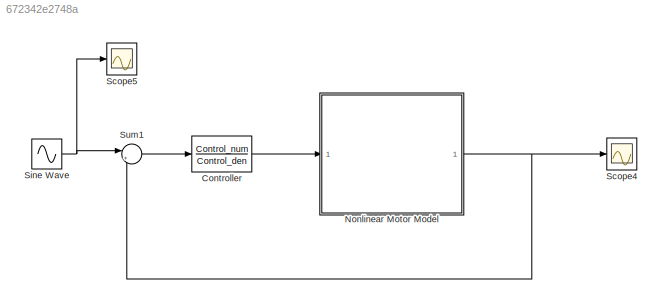
MODEL slx_672342e2748a
KIND model
BLOCK [TransferFcn] Controller
  Denominator = Control_den
  Numerator = Control_num
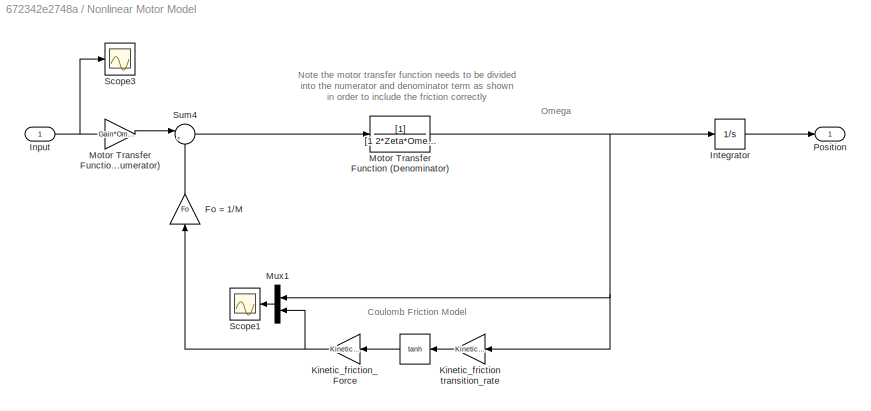
BLOCK [SubSystem] Nonlinear Motor Model
  FunctionWithSeparateData = off
  MaskHideContents = off
  MinAlgLoopOccurrences = off
  Opaque = off
  Ports = [1, 1]
  PropExecContextOutsideSubsystem = off
  RTWSystemCode = Auto
  RequestExecContextInheritance = off
BLOCK [Trigonometry] Nonlinear Motor Model/ 
  Operator = tanh
  Ports = [1, 1]
BLOCK [Gain] Nonlinear Motor Model/Fo = 1//M
  Gain = Fo
BLOCK [Inport] Nonlinear Motor Model/Input
  IconDisplay = Port number
BLOCK [Integrator] Nonlinear Motor Model/Integrator
  Ports = [1, 1]
BLOCK [Gain] Nonlinear Motor Model/Kinetic_friction transition_rate
  Gain = Kinetic_friction_transition_rate
  OutDataTypeStr = Inherit: Inherit via internal rule
  ParamDataTypeStr = Inherit: Inherit via internal rule
  SaturateOnIntegerOverflow = off
BLOCK [Gain] Nonlinear Motor Model/Kinetic_friction_Force
  Gain = Kinetic_friction_Force
  OutDataTypeStr = Inherit: Inherit via internal rule
  ParamDataTypeStr = Inherit: Inherit via internal rule
  SaturateOnIntegerOverflow = off
BLOCK [TransferFcn] Nonlinear Motor Model/Motor Transfer Function (Denominator)
  Denominator = [1 2*Zeta*Omegan Omegan^2]
BLOCK [Gain] Nonlinear Motor Model/Motor Transfer Function (Numerator)
  Gain = Gain*Omegan^2
BLOCK [Mux] Nonlinear Motor Model/Mux1
  DisplayOption = bar
  Inputs = 2
  Ports = [2, 1]
BLOCK [Outport] Nonlinear Motor Model/Position
  IconDisplay = Port number
BLOCK [Scope] Nonlinear Motor Model/Scope1
  Floating = off
  LimitDataPoints = off
  NumInputPorts = 1
  Ports = [1]
  SampleTime = 0
  SaveToWorkspace = on
  ShowLegends = off
  TimeRange = 20
  YMax = 0.2
  YMin = -0.2
BLOCK [Scope] Nonlinear Motor Model/Scope3
  Floating = off
  LimitDataPoints = off
  NumInputPorts = 1
  Ports = [1]
  SampleTime = 0
  SaveName = ScopeData1
  SaveToWorkspace = on
  ShowLegends = off
  TimeRange = 20
  YMax = 0.2
  YMin = -0.2
BLOCK [Sum] Nonlinear Motor Model/Sum4
  IconShape = round
  Inputs = |+-
  Ports = [2, 1]
BLOCK [Scope] Scope4
  Floating = off
  LimitDataPoints = off
  NumInputPorts = 1
  Ports = [1]
  SampleTime = 0
  SaveName = ScopeData4
  SaveToWorkspace = on
  ShowLegends = off
BLOCK [Scope] Scope5
  Floating = off
  LimitDataPoints = off
  NumInputPorts = 1
  Ports = [1]
  SampleTime = 0
  SaveName = ScopeData5
  SaveToWorkspace = on
  ShowLegends = off
BLOCK [Sin] Sine Wave
  Amplitude = Input_Amplitude
  Frequency = Input_Frequency
  Ports = [0, 1]
  SampleTime = 0
BLOCK [Sum] Sum1
  IconShape = round
  Inputs = |+-
  Ports = [2, 1]
ANNOTATION Nonlinear Motor Model: Coulomb Friction Model
ANNOTATION Nonlinear Motor Model: Note the motor transfer function needs to be divided into the numerator and denominator term as shown in order to include the friction correctly
ANNOTATION Nonlinear Motor Model: Omega
LINE Controller:1 -> Nonlinear Motor Model:1
LINE Nonlinear Motor Model/ :1 -> Nonlinear Motor Model/Kinetic_friction_Force:1
LINE Nonlinear Motor Model/Fo = 1//M:1 -> Nonlinear Motor Model/Sum4:2
NET Nonlinear Motor Model/Input:1 -> Nonlinear Motor Model/Motor Transfer Function (Numerator):1, Nonlinear Motor Model/Scope3:1
LINE Nonlinear Motor Model/Integrator:1 -> Nonlinear Motor Model/Position:1
LINE Nonlinear Motor Model/Kinetic_friction transition_rate:1 -> Nonlinear Motor Model/ :1
NET Nonlinear Motor Model/Kinetic_friction_Force:1 -> Nonlinear Motor Model/Fo = 1//M:1, Nonlinear Motor Model/Mux1:2
NET Nonlinear Motor Model/Motor Transfer Function (Denominator):1 -> Nonlinear Motor Model/Integrator:1, Nonlinear Motor Model/Kinetic_friction transition_rate:1, Nonlinear Motor Model/Mux1:1
LINE Nonlinear Motor Model/Motor Transfer Function (Numerator):1 -> Nonlinear Motor Model/Sum4:1
LINE Nonlinear Motor Model/Mux1:1 -> Nonlinear Motor Model/Scope1:1
LINE Nonlinear Motor Model/Sum4:1 -> Nonlinear Motor Model/Motor Transfer Function (Denominator):1
NET Nonlinear Motor Model:1 -> Scope4:1, Sum1:2
NET Sine Wave:1 -> Scope5:1, Sum1:1
LINE Sum1:1 -> Controller:1
note: NET lines group one-source signal fan-out (src -> all destinations, sorted); 1:1 wires keep LINE
